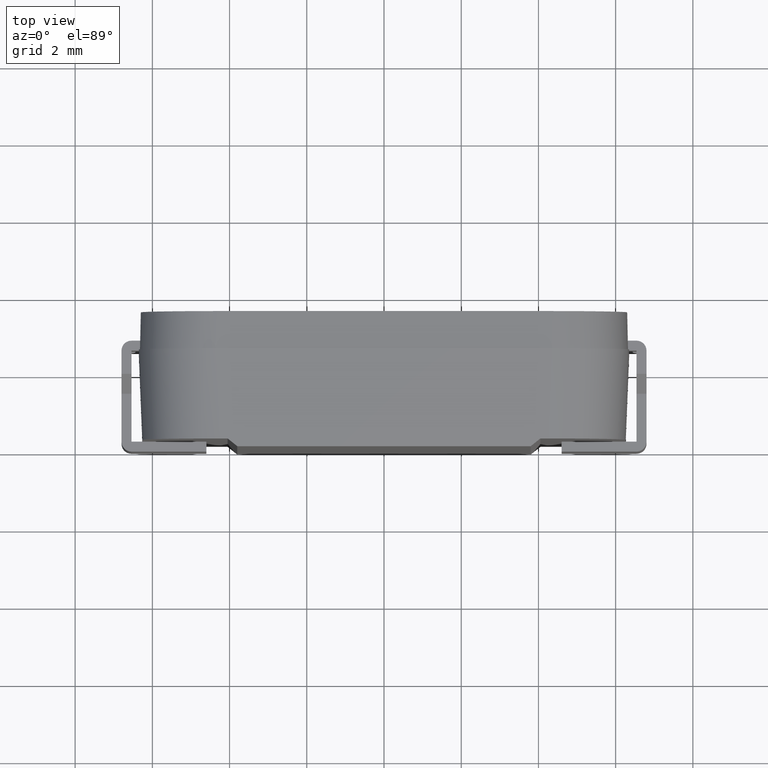
[diagram: clean part render]
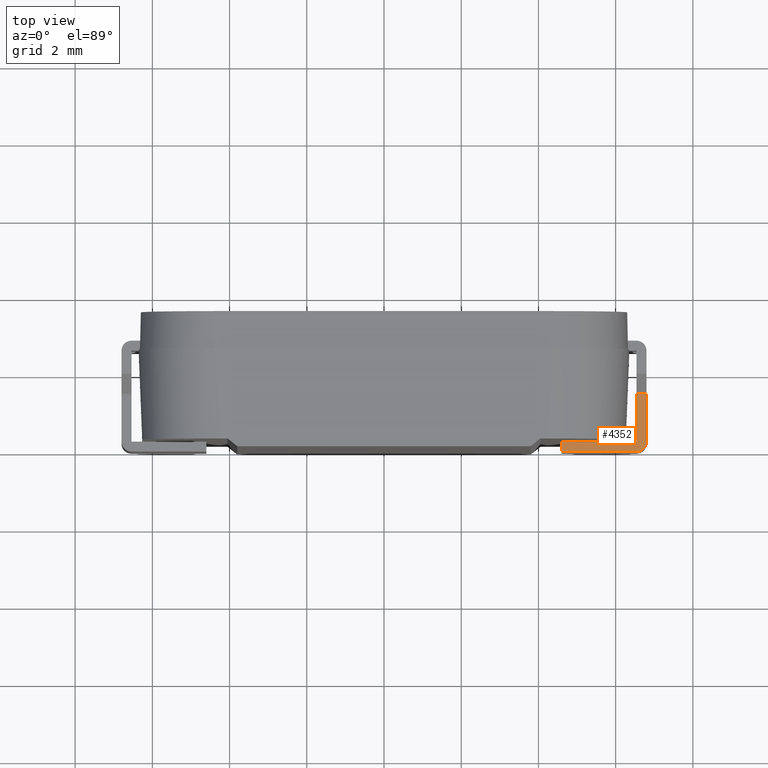
[diagram: same view with one face highlighted and labeled with its STEP entity id]
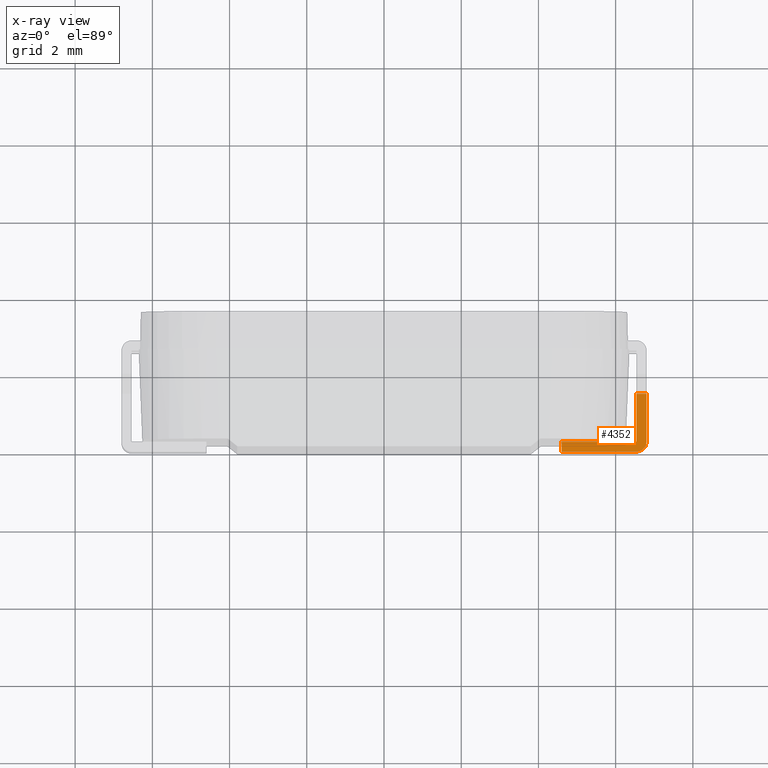
[diagram: x-ray of the same camera — body ghosted, the highlighted face saturated]
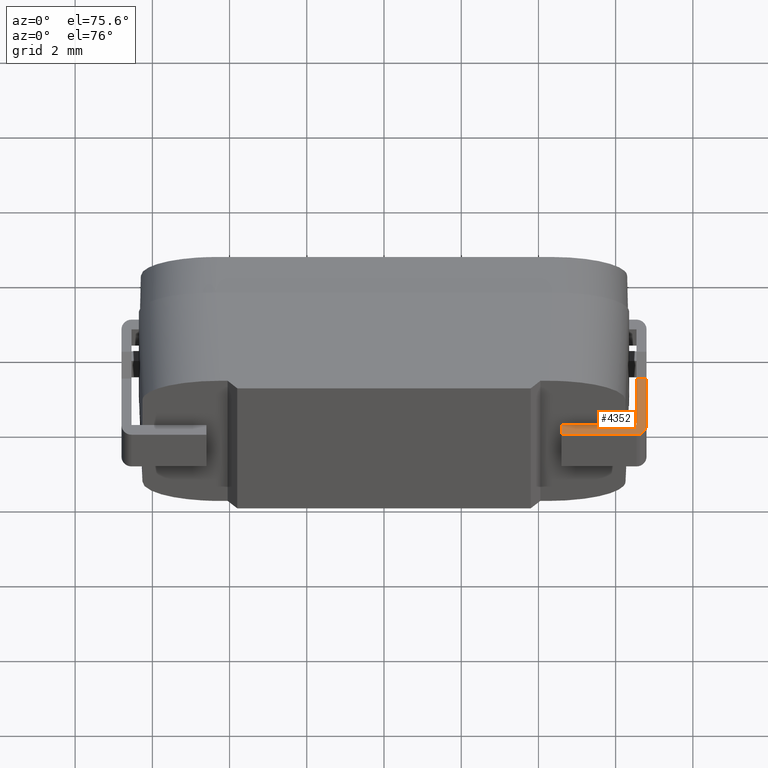
[diagram: same view with one face highlighted and labeled with its STEP entity id]
A machine part, top view. The second image highlights one B-rep face of the part: STEP entity #4352.
The next image is the same camera in x-ray: the body ghosted, the highlighted face saturated — about 0% of this face is hidden behind the body in this view.
A second angle (auxiliary view) of the same face is appended — the face is thin or edge-on in the first view.
In plain terms, the highlighted planar face has unit normal (0, -0, 1).
Its self-contained STEP definition (entity closure, byte-faithful):
#165 = DIRECTION ( 'NONE',  ( -1.000000000000000000, 0.0000000000000000000, 0.0000000000000000000 ) ) ;
#189 = EDGE_LOOP ( 'NONE', ( #3277, #4318, #1742, #2389, #1265, #4822, #3720, #3249 ) ) ;
#207 = CARTESIAN_POINT ( 'NONE',  ( 6.800000000000001599, 0.2000000000000005107, 1.649999999999998801 ) ) ;
#324 = LINE ( 'NONE', #1583, #5293 ) ;
#558 = VERTEX_POINT ( 'NONE', #4525 ) ;
#583 = VERTEX_POINT ( 'NONE', #2131 ) ;
#976 = LINE ( 'NONE', #5851, #5986 ) ;
#1061 = DIRECTION ( 'NONE',  ( -1.000000000000000000, -1.724867092590575572E-16, -2.493472865380611375E-32 ) ) ;
#1104 = CARTESIAN_POINT ( 'NONE',  ( 6.800000000000001599, 1.440000000000000169, 1.649999999999999023 ) ) ;
#1190 = DIRECTION ( 'NONE',  ( 3.032733349609803626E-16, -1.000000000000000000, -1.445602896647339903E-16 ) ) ;
#1265 = ORIENTED_EDGE ( 'NONE', *, *, #4454, .T. ) ;
#1444 = LINE ( 'NONE', #6224, #2877 ) ;
#1503 = CARTESIAN_POINT ( 'NONE',  ( 6.540000000000001812, 0.2000000000000005107, 1.649999999999998801 ) ) ;
#1566 = EDGE_CURVE ( 'NONE', #4526, #5139, #5592, .T. ) ;
#1571 = EDGE_CURVE ( 'NONE', #5139, #4231, #324, .T. ) ;
#1583 = CARTESIAN_POINT ( 'NONE',  ( 6.800000000000001599, 1.440000000000000169, 1.649999999999999023 ) ) ;
#1599 = CARTESIAN_POINT ( 'NONE',  ( 6.256015891416772945, 0.2000000000000013989, 1.649999999999995248 ) ) ;
#1624 = DIRECTION ( 'NONE',  ( 0.0000000000000000000, -1.445602896647339903E-16, 1.000000000000000000 ) ) ;
#1647 = DIRECTION ( 'NONE',  ( 0.0000000000000000000, -1.000000000000000000, 0.0000000000000000000 ) ) ;
#1742 = ORIENTED_EDGE ( 'NONE', *, *, #1566, .T. ) ;
#1874 = AXIS2_PLACEMENT_3D ( 'NONE', #1503, #1624, #1647 ) ;
#2006 = FACE_OUTER_BOUND ( 'NONE', #189, .T. ) ;
#2131 = CARTESIAN_POINT ( 'NONE',  ( 4.600000000000001421, -0.05999999999999936634, 1.649999999999998801 ) ) ;
#2389 = ORIENTED_EDGE ( 'NONE', *, *, #1571, .T. ) ;
#2406 = VERTEX_POINT ( 'NONE', #4092 ) ;
#2477 = DIRECTION ( 'NONE',  ( 1.000000000000000000, 3.888986053480610837E-16, 5.621929503932678196E-32 ) ) ;
#2737 = LINE ( 'NONE', #4876, #5001 ) ;
#2792 = VERTEX_POINT ( 'NONE', #1599 ) ;
#2877 = VECTOR ( 'NONE', #4304, 1000.000000000000000 ) ;
#2926 = LINE ( 'NONE', #6017, #4413 ) ;
#3056 = CARTESIAN_POINT ( 'NONE',  ( 6.800000000000001599, 1.440000000000000169, 1.649999999999999023 ) ) ;
#3060 = VECTOR ( 'NONE', #2477, 1000.000000000000000 ) ;
#3222 = CARTESIAN_POINT ( 'NONE',  ( 6.800000000000001599, 1.440000000000000169, 1.649999999999999023 ) ) ;
#3249 = ORIENTED_EDGE ( 'NONE', *, *, #3440, .F. ) ;
#3277 = ORIENTED_EDGE ( 'NONE', *, *, #3357, .F. ) ;
#3304 = CARTESIAN_POINT ( 'NONE',  ( 6.540000000000001812, 0.2000000000000009548, 1.649999999999998801 ) ) ;
#3357 = EDGE_CURVE ( 'NONE', #2406, #583, #1444, .T. ) ;
#3440 = EDGE_CURVE ( 'NONE', #583, #558, #976, .T. ) ;
#3599 = CARTESIAN_POINT ( 'NONE',  ( 6.540000000000000924, 1.440000000000000169, 1.649999999999999023 ) ) ;
#3720 = ORIENTED_EDGE ( 'NONE', *, *, #5392, .F. ) ;
#4009 = PLANE ( 'NONE',  #5390 ) ;
#4092 = CARTESIAN_POINT ( 'NONE',  ( 6.540000000000001812, -0.05999999999999936634, 1.649999999999998801 ) ) ;
#4231 = VERTEX_POINT ( 'NONE', #3599 ) ;
#4304 = DIRECTION ( 'NONE',  ( -1.000000000000000000, 0.0000000000000000000, 0.0000000000000000000 ) ) ;
#4318 = ORIENTED_EDGE ( 'NONE', *, *, #6043, .T. ) ;
#4352 = ADVANCED_FACE ( 'NONE', ( #2006 ), #4009, .T. ) ;
#4413 = VECTOR ( 'NONE', #1190, 1000.000000000000000 ) ;
#4454 = EDGE_CURVE ( 'NONE', #4231, #5256, #2926, .T. ) ;
#4525 = CARTESIAN_POINT ( 'NONE',  ( 4.600000000000001421, 0.2000000000000003164, 1.649999999999998801 ) ) ;
#4526 = VERTEX_POINT ( 'NONE', #207 ) ;
#4822 = ORIENTED_EDGE ( 'NONE', *, *, #5381, .T. ) ;
#4845 = DIRECTION ( 'NONE',  ( 0.0000000000000000000, 1.000000000000000000, 1.445602896647339903E-16 ) ) ;
#4856 = CARTESIAN_POINT ( 'NONE',  ( 6.350000000000002309, 0.2000000000000015654, 1.649999999999998579 ) ) ;
#4876 = CARTESIAN_POINT ( 'NONE',  ( 6.800000000000001599, 0.2000000000000006772, 1.649999999999998801 ) ) ;
#4978 = DIRECTION ( 'NONE',  ( 0.0000000000000000000, -1.000000000000000000, -1.445602896647339903E-16 ) ) ;
#5001 = VECTOR ( 'NONE', #1061, 1000.000000000000000 ) ;
#5139 = VERTEX_POINT ( 'NONE', #3222 ) ;
#5149 = LINE ( 'NONE', #4856, #3060 ) ;
#5256 = VERTEX_POINT ( 'NONE', #3304 ) ;
#5293 = VECTOR ( 'NONE', #165, 1000.000000000000000 ) ;
#5381 = EDGE_CURVE ( 'NONE', #5256, #2792, #2737, .T. ) ;
#5390 = AXIS2_PLACEMENT_3D ( 'NONE', #1104, #5895, #4978 ) ;
#5392 = EDGE_CURVE ( 'NONE', #558, #2792, #5149, .T. ) ;
#5519 = CIRCLE ( 'NONE', #1874, 0.2600000000000000089 ) ;
#5592 = LINE ( 'NONE', #3056, #5743 ) ;
#5743 = VECTOR ( 'NONE', #5903, 1000.000000000000000 ) ;
#5851 = CARTESIAN_POINT ( 'NONE',  ( 4.600000000000001421, -0.05999999999999960226, 1.649999999999998801 ) ) ;
#5895 = DIRECTION ( 'NONE',  ( 0.0000000000000000000, -1.445602896647339903E-16, 1.000000000000000000 ) ) ;
#5903 = DIRECTION ( 'NONE',  ( -0.0000000000000000000, 1.000000000000000000, 1.445602896647339903E-16 ) ) ;
#5986 = VECTOR ( 'NONE', #4845, 1000.000000000000000 ) ;
#6017 = CARTESIAN_POINT ( 'NONE',  ( 6.540000000000000924, 2.799999999999999822, 1.649999999999999245 ) ) ;
#6043 = EDGE_CURVE ( 'NONE', #2406, #4526, #5519, .T. ) ;
#6224 = CARTESIAN_POINT ( 'NONE',  ( 6.800000000000001599, -0.05999999999999936634, 1.649999999999998801 ) ) ;